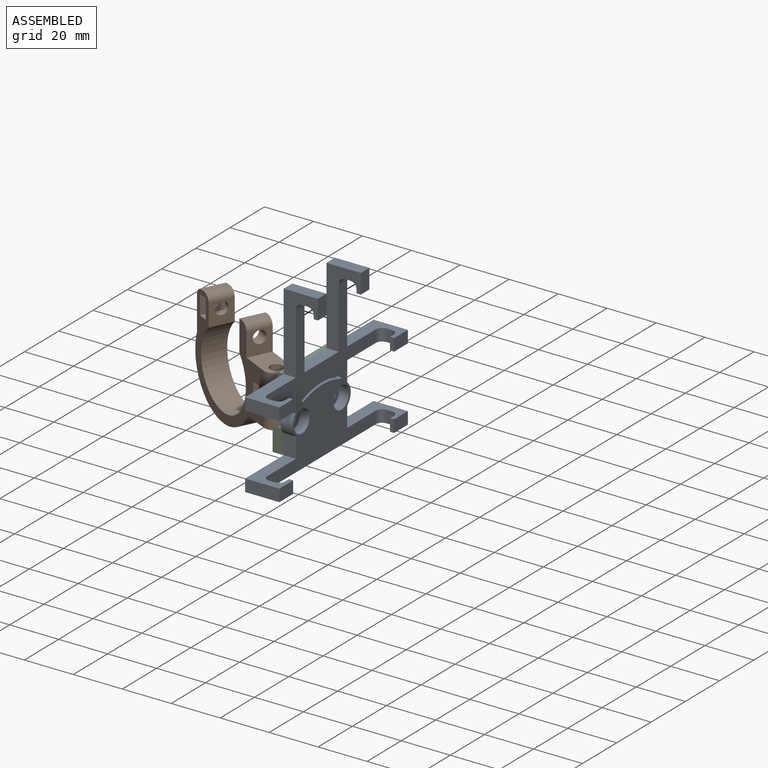
[diagram: assembled view]
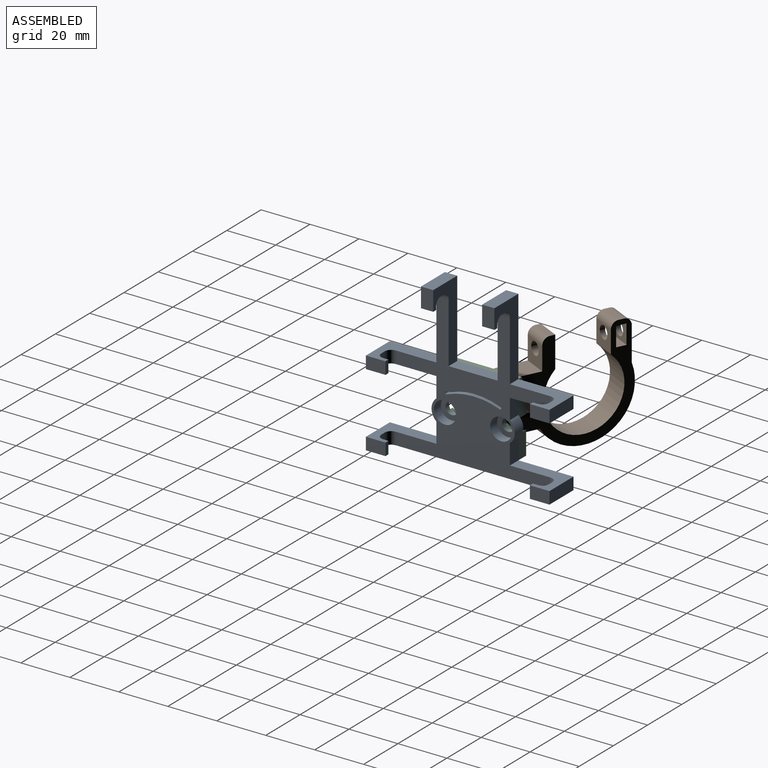
[diagram: assembled view, second angle]
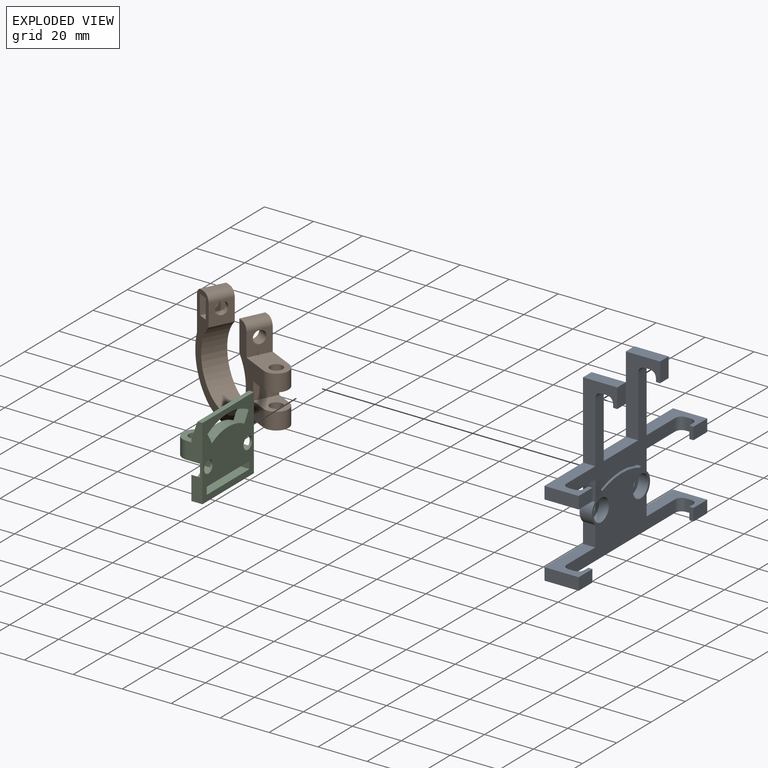
[diagram: exploded view]
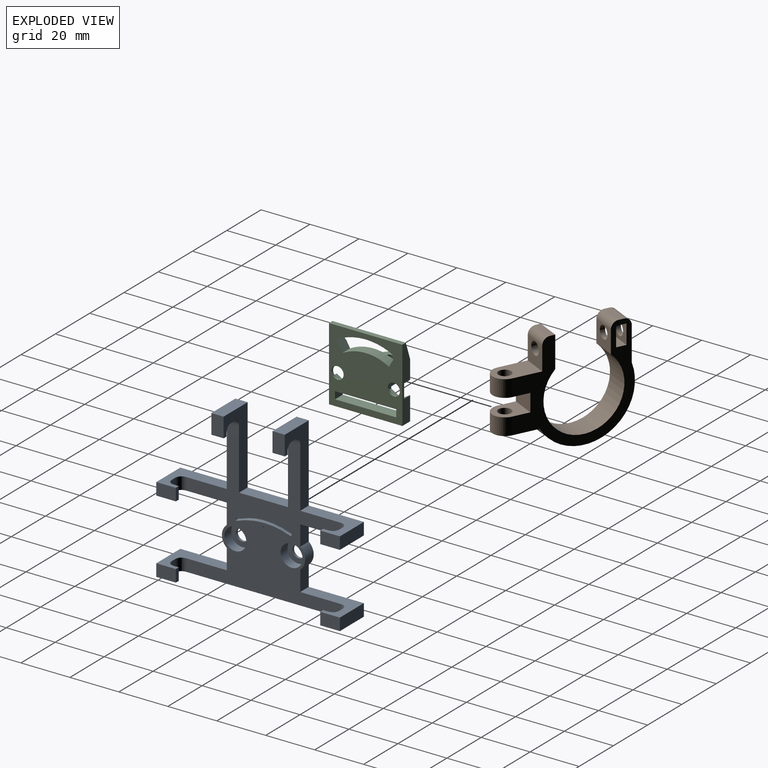
[diagram: exploded view, second angle]
ASSEMBLY  parts=3 mates=2
PART A: 73 faces, bbox 75x93.5x14 mm
  f0: plane 62.5x59.5mm, normal (0,0,-1), area 1493.1mm2, adj f7,f8,f9,f10,f11,f12,f13,f14
  f1: plane 5x1.7mm, normal (-1,0,0), area 8.5mm2, adj f9,f10,f27,f68
  f2: plane 5x1.7mm, normal (-1,0,0), area 8.5mm2, adj f22,f23,f29,f61
  f3: plane 5x1.7mm, normal (1,0,0), area 8.5mm2, adj f10,f11,f31,f57
  f4: plane 5x1.7mm, normal (1,0,0), area 8.5mm2, adj f15,f16,f33,f53
  f5: plane 5x1.7mm, normal (0,1,0), area 8.5mm2, adj f17,f18,f35,f49
  f6: plane 5x1.7mm, normal (0,1,0), area 8.5mm2, adj f20,f21,f37,f45
  f7: cylinder r=5.5mm len=8.49mm, axis (0,0,-1), area 48.5mm2, adj f0,f8,f24,f25
  f8: plane 8.26x5mm, normal (1,0,0), area 41.3mm2, adj f0,f7,f9,f25
  f9: plane 22.5x14mm, normal (0,-1,0), area 152.8mm2, adj f0,f1,f8,f25,f26,f27,f65,f66
  f10: plane 75x14mm, normal (0,1,0), area 455.6mm2, adj f0,f1,f3,f25,f26,f27,f30,f31
  f11: plane 22.5x14mm, normal (0,-1,0), area 152.8mm2, adj f0,f3,f12,f25,f30,f31,f57,f58
  f12: plane 8.26x5mm, normal (-1,0,0), area 41.3mm2, adj f0,f11,f13,f25
  f13: cylinder r=5.5mm len=8.49mm, axis (0,0,-1), area 48.5mm2, adj f0,f12,f14,f25
  f14: plane 8.26x5mm, normal (-1,0,0), area 41.3mm2, adj f0,f13,f15,f25
  f15: plane 22.5x14mm, normal (0,1,0), area 152.8mm2, adj f0,f4,f14,f25,f32,f33,f53,f54
  f16: plane 22.5x14mm, normal (0,-1,0), area 152.8mm2, adj f0,f4,f17,f25,f32,f33,f53,f54
  f17: plane 31.5x14mm, normal (-1,0,0), area 203.3mm2, adj f0,f5,f16,f25,f34,f35,f49,f50
  f18: plane 31.5x14mm, normal (1,0,0), area 203.3mm2, adj f0,f5,f19,f25,f34,f35,f49,f50
  f19: plane 20x5mm, normal (0,-1,0), area 100mm2, adj f0,f18,f20,f25
  f20: plane 31.5x14mm, normal (-1,0,0), area 203.3mm2, adj f0,f6,f19,f25,f36,f37,f45,f46
  f21: plane 31.5x14mm, normal (1,0,0), area 203.3mm2, adj f0,f6,f22,f25,f36,f37,f45,f46
  f22: plane 22.5x14mm, normal (0,-1,0), area 152.8mm2, adj f0,f2,f21,f25,f28,f29,f61,f62
  f23: plane 22.5x14mm, normal (0,1,0), area 152.8mm2, adj f0,f2,f24,f25,f28,f29,f61,f62
  f24: plane 8.26x5mm, normal (1,0,0), area 41.3mm2, adj f0,f7,f23,f25
  f25: plane 75x66.5mm, normal (0,0,1), area 1799.3mm2, adj f7,f8,f9,f10,f11,f12,f13,f14
  f26: plane 14x5mm, normal (1,0,0), area 70mm2, adj f9,f10,f25,f27
  f27: plane 8x5mm, normal (0,0,-1), area 40mm2, adj f1,f9,f10,f26
  f28: plane 14x5mm, normal (1,0,0), area 70mm2, adj f22,f23,f25,f29
  f29: plane 8x5mm, normal (0,0,-1), area 40mm2, adj f2,f22,f23,f28
  f30: plane 14x5mm, normal (-1,0,0), area 70mm2, adj f10,f11,f25,f31
  f31: plane 8x5mm, normal (0,0,-1), area 40mm2, adj f3,f10,f11,f30
  f32: plane 14x5mm, normal (-1,0,0), area 70mm2, adj f15,f16,f25,f33
  f33: plane 8x5mm, normal (0,0,-1), area 40mm2, adj f4,f15,f16,f32
  f34: plane 14x5mm, normal (0,-1,0), area 70mm2, adj f17,f18,f25,f35
  f35: plane 8x5mm, normal (0,0,-1), area 40mm2, adj f5,f17,f18,f34
  f36: plane 14x5mm, normal (0,-1,0), area 70mm2, adj f20,f21,f25,f37
  f37: plane 8x5mm, normal (0,0,-1), area 40mm2, adj f6,f20,f21,f36
  f38: cylinder r=2.5mm len=5mm, axis (0,0,-1), area 15.7mm2, adj f25,f72
  f39: cylinder r=2.5mm len=5mm, axis (0,0,-1), area 15.7mm2, adj f25,f70
  f40: cylinder r=0.5mm len=2mm, axis (0,0,-1), area 3.1mm2, adj f0,f41,f43,f44
  f41: cylinder r=29.64mm len=21.64mm, axis (0,0,-1), area 44.3mm2, adj f0,f40,f42,f44
  f42: cylinder r=0.5mm len=2mm, axis (0,0,-1), area 3.1mm2, adj f0,f41,f43,f44
  f43: cylinder r=30.64mm len=22.37mm, axis (0,0,-1), area 45.8mm2, adj f0,f40,f42,f44
  f44: plane 23x3.21mm, normal (0,0,-1), area 23.3mm2, adj f40,f41,f42,f43
  f45: plane 5x1mm, normal (0,0,1), area 5mm2, adj f6,f20,f21,f46
  f46: bspline ~66.78x3mm, area 24.3mm2, adj f20,f21,f45,f48
  f47: bspline ~66.78x3mm, area 24.3mm2, adj f0,f20,f21,f48
  f48: plane 5x1.3mm, normal (0,1,0), area 6.5mm2, adj f20,f21,f46,f47
  f49: plane 5x1mm, normal (0,0,1), area 5mm2, adj f5,f17,f18,f50
  f50: bspline ~66.78x3mm, area 24.3mm2, adj f17,f18,f49,f52
  f51: bspline ~66.78x3mm, area 24.3mm2, adj f0,f17,f18,f52
  f52: plane 5x1.3mm, normal (0,1,0), area 6.5mm2, adj f17,f18,f50,f51
  f53: plane 5x1.75mm, normal (0,0,1), area 8.8mm2, adj f4,f15,f16,f54
  f54: bspline ~89x3mm, area 24.3mm2, adj f15,f16,f53,f56
  f55: bspline ~89x3mm, area 24.3mm2, adj f0,f15,f16,f56
  f56: plane 5x1.3mm, normal (1,0,0), area 6.5mm2, adj f15,f16,f54,f55
  f57: plane 5x1.75mm, normal (0,0,1), area 8.8mm2, adj f3,f10,f11,f58
  f58: bspline ~89x3mm, area 24.3mm2, adj f10,f11,f57,f60
  f59: bspline ~89x3mm, area 24.3mm2, adj f0,f10,f11,f60
  f60: plane 5x1.3mm, normal (1,0,0), area 6.5mm2, adj f10,f11,f58,f59
  f61: plane 5x1.75mm, normal (0,0,1), area 8.8mm2, adj f2,f22,f23,f62
  f62: bspline ~89x3mm, area 24.3mm2, adj f22,f23,f61,f64
  f63: bspline ~89x3mm, area 24.3mm2, adj f0,f22,f23,f64
  f64: plane 5x1.3mm, normal (-1,0,0), area 6.5mm2, adj f22,f23,f62,f63
  f65: plane 5x1.3mm, normal (-1,0,0), area 6.5mm2, adj f9,f10,f66,f67
  f66: bspline ~89x3mm, area 24.3mm2, adj f0,f9,f10,f65
  f67: bspline ~89x3mm, area 24.3mm2, adj f9,f10,f65,f68
  f68: plane 5x1.75mm, normal (0,0,1), area 8.7mm2, adj f1,f9,f10,f67
  f69: cylinder r=4.5mm len=9mm, axis (0,0,-1), area 113.1mm2, adj f0,f70
  f70: plane 9x9mm, normal (0,0,-1), area 44mm2, adj f39,f69
  f71: cylinder r=4.5mm len=9mm, axis (0,0,-1), area 113.1mm2, adj f0,f72
  f72: plane 9x9mm, normal (0,0,-1), area 44mm2, adj f38,f71
PART B: 29 faces, bbox 43.2x52x10 mm
  f0: plane 12x10mm, normal (1,0,0), area 88mm2, adj f15,f17,f18,f20,f22
  f1: plane 16.54x10mm, normal (1,0,0), area 133.4mm2, adj f14,f17,f18,f19,f21
  f2: plane 12x10mm, normal (-1,0,0), area 88mm2, adj f15,f17,f18,f19,f21
  f3: plane 15.64x10mm, normal (-1,0,0), area 124.4mm2, adj f7,f17,f18,f20,f22
  f4: plane 10x7.95mm, normal (0,1,0), area 58.3mm2, adj f5,f16,f17,f18,f25
  f5: plane 10x4mm, normal (1,0,0), area 40mm2, adj f4,f6,f17,f18
  f6: plane 10x7.95mm, normal (0,-1,0), area 58.3mm2, adj f5,f16,f17,f18,f24
  f7: cylinder r=19.5mm len=36.36mm, axis (0,0,-1), area 578.9mm2, adj f3,f8,f17,f18
  f8: plane 13.91x10mm, normal (0,-1,0), area 117.8mm2, adj f7,f17,f18,f25,f26
  f9: plane 10x2mm, normal (1,0,0), area 20mm2, adj f17,f18,f26,f27
  f10: plane 10x9.07mm, normal (0,1,0), area 69.5mm2, adj f11,f17,f18,f24,f27
  f11: cylinder r=15.5mm len=31mm, axis (0,0,-1), area 739.6mm2, adj f10,f12,f17,f18
  f12: plane 12.7x10mm, normal (0,-1,0), area 105.7mm2, adj f11,f13,f17,f18,f23
  f13: plane 10x2mm, normal (1,0,0), area 20mm2, adj f12,f17,f18,f28
  f14: plane 10x9.45mm, normal (0,1,0), area 73.3mm2, adj f1,f17,f18,f23,f28
  f15: plane 10x7.2mm, normal (0,1,0), area 72mm2, adj f0,f2,f17,f18
  f16: plane 10x4mm, normal (-1,0,0), area 40mm2, adj f4,f6,f17,f18
  f17: plane 47x43.16mm, normal (0,0,1), area 584.9mm2, adj f0,f1,f2,f3,f4,f5,f6,f7
  f18: plane 47x43.16mm, normal (0,0,-1), area 584.9mm2, adj f0,f1,f2,f3,f4,f5,f6,f7
  f19: cylinder r=5mm len=10mm, axis (1,0,0), area 108.4mm2, adj f1,f2,f17,f18
  f20: cylinder r=5mm len=10mm, axis (1,0,0), area 108.4mm2, adj f0,f3,f17,f18
  f21: cylinder r=2.6mm len=6.9mm, axis (1,0,0), area 112.7mm2, adj f1,f2
  f22: cylinder r=2.6mm len=6.9mm, axis (1,0,0), area 112.7mm2, adj f0,f3
  f23: cylinder r=2.6mm len=5.2mm, axis (0,1,0), area 81.7mm2, adj f12,f14
  f24: cylinder r=2.6mm len=5.2mm, axis (0,1,0), area 32.7mm2, adj f6,f10
  f25: cylinder r=2.6mm len=5.2mm, axis (0,1,0), area 32.7mm2, adj f4,f8
  f26: cylinder r=3mm len=10mm, axis (0,0,1), area 47.1mm2, adj f8,f9,f17,f18
  f27: cylinder r=3mm len=10mm, axis (0,0,-1), area 47.1mm2, adj f9,f10,f17,f18
  f28: cylinder r=3mm len=10mm, axis (0,0,-1), area 47.1mm2, adj f13,f14,f17,f18
PART C: 38 faces, bbox 30x30x18.5 mm
  f0: plane 30x23mm, normal (0,0,1), area 339.5mm2, adj f1,f2,f3,f4,f5,f6,f7,f8
  f1: plane 14x9mm, normal (1,0,0), area 77mm2, adj f0,f17,f18,f25,f26,f27,f28,f29
  f2: plane 14x9mm, normal (-1,0,0), area 77mm2, adj f0,f17,f18,f25,f26,f27,f28,f29
  f3: plane 3.5x3.5mm, normal (-0.5,0.87,0), area 14.1mm2, adj f0,f4,f15,f21
  f4: plane 4.2x3.5mm, normal (0.5,0.87,0), area 17mm2, adj f0,f3,f5,f21
  f5: plane 4.85x3.5mm, normal (1,0,0), area 17mm2, adj f0,f4,f6,f21
  f6: plane 4.2x3.5mm, normal (0.5,-0.87,0), area 17mm2, adj f0,f5,f7,f21
  f7: plane 3.5x3.5mm, normal (-0.5,-0.87,0), area 14.1mm2, adj f0,f6,f15,f21
  f8: plane 3.5x3.5mm, normal (0.5,-0.87,0), area 14.1mm2, adj f0,f9,f16,f20
  f9: plane 4.2x3.5mm, normal (-0.5,-0.87,0), area 17mm2, adj f0,f8,f10,f20
  f10: plane 4.85x3.5mm, normal (-1,0,0), area 17mm2, adj f0,f9,f11,f20
  f11: plane 4.2x3.5mm, normal (-0.5,0.87,0), area 17mm2, adj f0,f10,f12,f20
  f12: plane 3.5x3.5mm, normal (0.5,0.87,0), area 14.1mm2, adj f0,f11,f16,f20
  f13: plane 30x30mm, normal (0,0,-1), area 673.2mm2, adj f14,f15,f16,f17,f19,f23,f24,f31
  f14: plane 30x2mm, normal (0,-1,0), area 60mm2, adj f13,f15,f16,f22
  f15: plane 30x4.5mm, normal (1,0,0), area 106.4mm2, adj f0,f3,f7,f13,f14,f19,f21,f22
  f16: plane 30x4.5mm, normal (-1,0,0), area 106.4mm2, adj f0,f8,f12,f13,f14,f19,f20,f22
  f17: plane 25x6.5mm, normal (0,1,0), area 132.5mm2, adj f0,f1,f2,f13,f27,f35,f37
  f18: plane 10x2mm, normal (0,-1,0), area 20mm2, adj f0,f1,f2,f26
  f19: plane 30x4.5mm, normal (0,1,0), area 135mm2, adj f0,f13,f15,f16
  f20: plane 9.7x7.7mm, normal (0,0,1), area 37.8mm2, adj f8,f9,f10,f11,f12,f16,f23
  f21: plane 9.7x7.7mm, normal (0,0,1), area 37.8mm2, adj f3,f4,f5,f6,f7,f15,f24
  f22: plane 30x7mm, normal (0,-0.34,0.94), area 125.3mm2, adj f0,f14,f15,f16,f31,f32,f33
  f23: cylinder r=2.5mm len=5mm, axis (0,0,1), area 15.7mm2, adj f13,f20
  f24: cylinder r=2.5mm len=5mm, axis (0,0,1), area 15.7mm2, adj f13,f21
  f25: plane 12x10mm, normal (0,-1,0), area 89.6mm2, adj f1,f2,f26,f29,f30
  f26: plane 10x3.5mm, normal (0,0,1), area 35mm2, adj f1,f2,f18,f25
  f27: plane 10x3.5mm, normal (0,0,1), area 35mm2, adj f1,f2,f17,f28
  f28: plane 12x10mm, normal (0,1,0), area 89.6mm2, adj f1,f2,f27,f29,f30
  f29: cylinder r=5mm len=10mm, axis (0,1,0), area 110mm2, adj f1,f2,f25,f28
  f30: cylinder r=2.5mm len=7mm, axis (0,1,0), area 110mm2, adj f25,f28
  f31: cylinder r=24.02mm len=24mm, axis (0,0,1), area 78.4mm2, adj f13,f22,f32,f33
  f32: plane 4.5x4.33mm, normal (0.87,-0.5,0), area 21.9mm2, adj f0,f13,f22,f31,f34
  f33: plane 4.5x4.33mm, normal (-0.87,-0.5,0), area 21.9mm2, adj f0,f13,f22,f31,f34
  f34: cylinder r=19.02mm len=19mm, axis (0,0,1), area 89.5mm2, adj f0,f13,f32,f33
  f35: plane 4.5x3mm, normal (-1,0,0), area 13.5mm2, adj f0,f13,f17,f36
  f36: plane 25x4.5mm, normal (0,-1,0), area 112.5mm2, adj f0,f13,f35,f37
  f37: plane 4.5x3mm, normal (1,0,0), area 13.5mm2, adj f0,f13,f17,f36
PLACE A rot(axis=(-0.58,-0.58,0.58),120deg) t=(122.01,0.99,5)mm
PLACE B rot(axis=(-0.65,-0.4,-0.65),136deg) t=(69.31,8.57,4.39)mm
PLACE C rot(axis=(-0.58,-0.58,0.58),120deg) t=(109.71,0.99,5)mm fixed
MATE fastened A.f39 <-> C.f24  axis (-1,0,0) through (109.71,12.49,5)mm
MATE revolute B.f19 <-> C.f29  axis (0,0,1) through (96.21,0.99,1.5)mm
